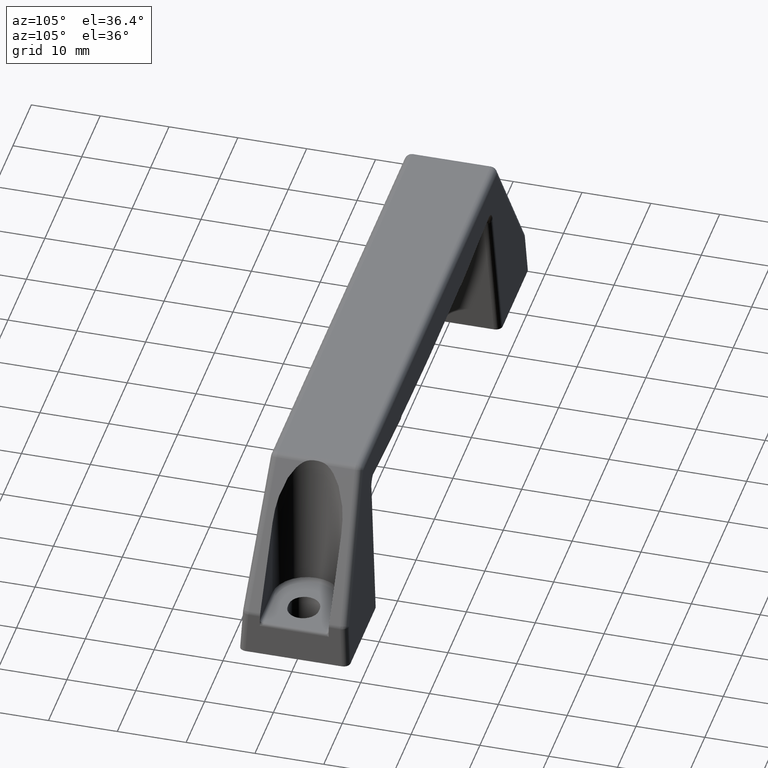
[diagram: clean part render]
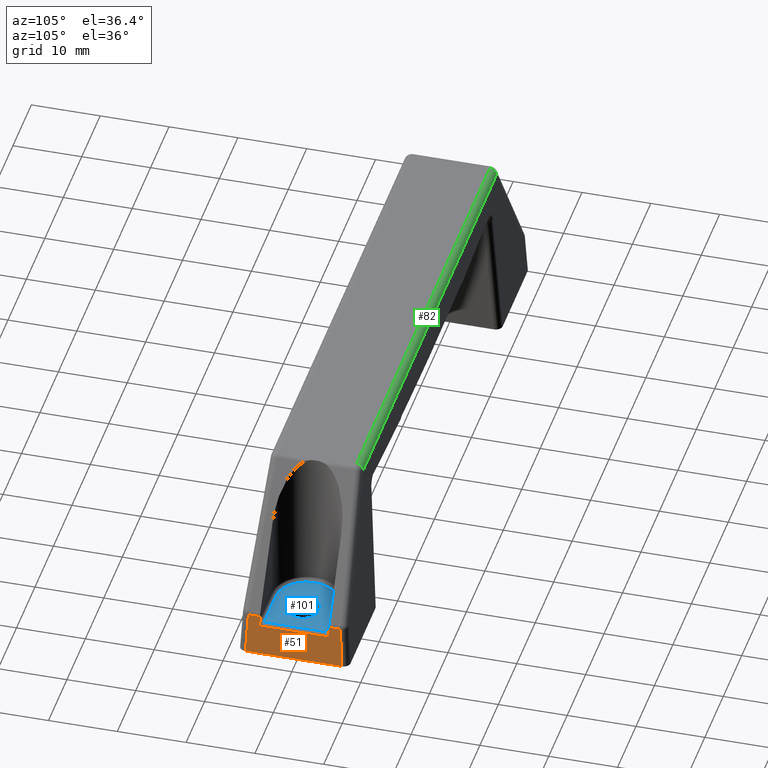
[diagram: same view with three faces highlighted in distinct colors, each labeled with its STEP entity id]
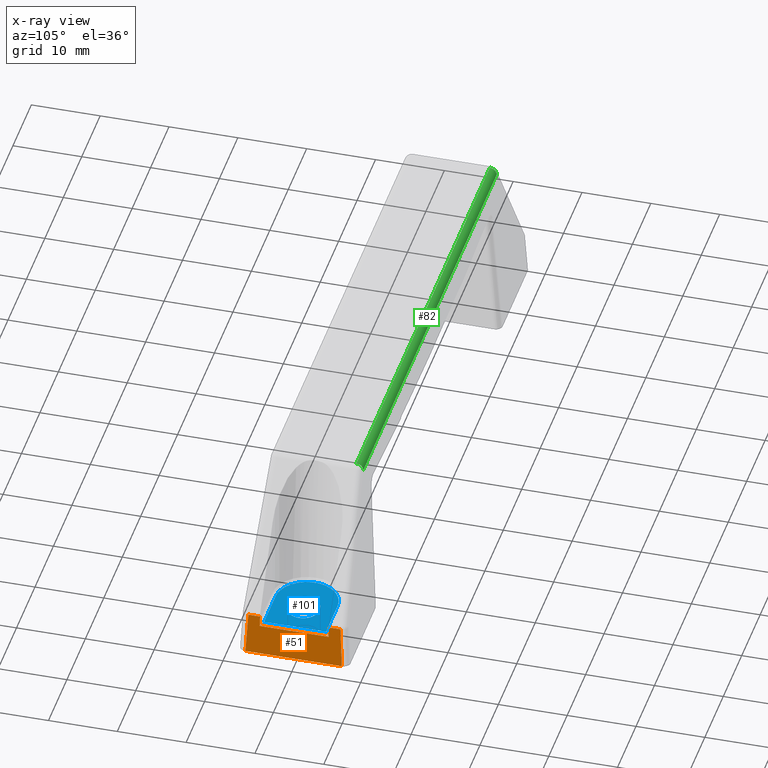
[diagram: x-ray of the same camera — body ghosted, the three highlighted faces saturated]
A machine part, auxiliary view with three faces highlighted in distinct colors.
The next image is the same camera in x-ray (body ghosted, the three faces saturated) — at least one of them is partly hidden behind the body in this view.
Their STEP definitions:

[orange] entity #51 — the highlighted planar face has unit normal (0.9977, -0, 0.068).
#51=ADVANCED_FACE('',(#231),#230,.T.);
#230=PLANE('',#1058);
#231=FACE_OUTER_BOUND('',#1059,.T.);
#1055=CARTESIAN_POINT('',(4.85427283432E+01,-8.40263158484E+00,-1.92940151010E+01));
#1056=DIRECTION('',(9.97683234125E-01,-0.00000000000E+00,6.80306132978E-02));
#1057=DIRECTION('',(6.80306132978E-02,0.00000000000E+00,-9.97683234125E-01));
#1058=AXIS2_PLACEMENT_3D('',#1055,#1056,#1057);
#1059=EDGE_LOOP('',(#1719,#1720,#1721,#1722,#1723,#1724,#1725,#1726,#1727,#1728));
#1719=ORIENTED_EDGE('',*,*,#2095,.T.);
#1720=ORIENTED_EDGE('',*,*,#2096,.T.);
#1721=ORIENTED_EDGE('',*,*,#2097,.F.);
#1722=ORIENTED_EDGE('',*,*,#2098,.F.);
#1723=ORIENTED_EDGE('',*,*,#2067,.F.);
#1724=ORIENTED_EDGE('',*,*,#2099,.F.);
#1725=ORIENTED_EDGE('',*,*,#2052,.F.);
#1726=ORIENTED_EDGE('',*,*,#2100,.T.);
#1727=ORIENTED_EDGE('',*,*,#2101,.T.);
#1728=ORIENTED_EDGE('',*,*,#2102,.T.);
#2052=EDGE_CURVE('',#2242,#2243,#2244,.T.);
#2067=EDGE_CURVE('',#2339,#2346,#2347,.T.);
#2095=EDGE_CURVE('',#2539,#2540,#2541,.T.);
#2096=EDGE_CURVE('',#2540,#2547,#2548,.T.);
#2097=EDGE_CURVE('',#2554,#2547,#2555,.T.);
#2098=EDGE_CURVE('',#2346,#2554,#2561,.T.);
#2099=EDGE_CURVE('',#2243,#2339,#2567,.T.);
#2100=EDGE_CURVE('',#2242,#2573,#2574,.T.);
#2101=EDGE_CURVE('',#2573,#2580,#2581,.T.);
#2102=EDGE_CURVE('',#2580,#2539,#2587,.T.);
#2242=VERTEX_POINT('',#3494);
#2243=VERTEX_POINT('',#3495);
#2244=LINE('',#3496,#3497);
#2339=VERTEX_POINT('',#3565);
#2346=VERTEX_POINT('',#3570);
#2347=LINE('',#3571,#3572);
#2539=VERTEX_POINT('',#3683);
#2540=VERTEX_POINT('',#3684);
#2541=LINE('',#3685,#3686);
#2547=VERTEX_POINT('',#3688);
#2548=LINE('',#3689,#3690);
#2554=VERTEX_POINT('',#3692);
#2555=LINE('',#3693,#3694);
#2561=LINE('',#3696,#3697);
#2567=LINE('',#3699,#3700);
#2573=VERTEX_POINT('',#3702);
#2574=LINE('',#3703,#3704);
#2580=VERTEX_POINT('',#3706);
#2581=LINE('',#3707,#3708);
#2587=LINE('',#3710,#3711);
#3494=CARTESIAN_POINT('',(4.86908318878E+01,5.00000000004E+00,-2.14659846934E+01));
#3495=CARTESIAN_POINT('',(4.86319156485E+01,5.00000000004E+00,-2.06019656677E+01));
#3496=CARTESIAN_POINT('',(4.86908318878E+01,5.00000000004E+00,-2.14659846934E+01));
#3497=VECTOR('',#3498,8.66025403784E-01);
#3498=DIRECTION('',(-6.80306132978E-02,0.00000000000E+00,9.97683234125E-01));
#3565=CARTESIAN_POINT('',(4.85842984938E+01,5.00000000004E+00,-1.99036500918E+01));
#3570=CARTESIAN_POINT('',(4.85842984938E+01,6.68269682695E+00,-1.99036500918E+01));
#3571=CARTESIAN_POINT('',(4.85842984938E+01,5.00000000004E+00,-1.99036500918E+01));
#3572=VECTOR('',#3573,1.68269682690E+00);
#3573=DIRECTION('',(0.00000000000E+00,1.00000000000E+00,0.00000000000E+00));
#3683=CARTESIAN_POINT('',(4.85842984938E+01,-5.00000000004E+00,-1.99036500918E+01));
#3684=CARTESIAN_POINT('',(4.85842984938E+01,-6.68269682695E+00,-1.99036500918E+01));
#3685=CARTESIAN_POINT('',(4.85842984938E+01,-5.00000000004E+00,-1.99036500918E+01));
#3686=VECTOR('',#3687,1.68269682690E+00);
#3687=DIRECTION('',(0.00000000000E+00,-1.00000000000E+00,0.00000000000E+00));
#3688=CARTESIAN_POINT('',(4.90000000000E+01,-7.00219298737E+00,-2.60000000000E+01));
#3689=CARTESIAN_POINT('',(4.85842984938E+01,-6.68269682695E+00,-1.99036500918E+01));
#3690=VECTOR('',#3691,6.11885346631E+00);
#3691=DIRECTION('',(6.79378103245E-02,-5.22150370459E-02,-9.96322259028E-01));
#3692=CARTESIAN_POINT('',(4.90000000000E+01,7.00219298737E+00,-2.60000000000E+01));
#3693=CARTESIAN_POINT('',(4.90000000000E+01,7.00219298737E+00,-2.60000000000E+01));
#3694=VECTOR('',#3695,1.40043859747E+01);
#3695=DIRECTION('',(0.00000000000E+00,-1.00000000000E+00,0.00000000000E+00));
#3696=CARTESIAN_POINT('',(4.85842984938E+01,6.68269682695E+00,-1.99036500918E+01));
#3697=VECTOR('',#3698,6.11885346631E+00);
#3698=DIRECTION('',(6.79378103245E-02,5.22150370459E-02,-9.96322259028E-01));
#3699=CARTESIAN_POINT('',(4.86319156485E+01,5.00000000004E+00,-2.06019656677E+01));
#3700=VECTOR('',#3701,6.99937166398E-01);
#3701=DIRECTION('',(-6.80306132978E-02,0.00000000000E+00,9.97683234125E-01));
#3702=CARTESIAN_POINT('',(4.86908318878E+01,-5.00000000004E+00,-2.14659846934E+01));
#3703=CARTESIAN_POINT('',(4.86908318878E+01,5.00000000004E+00,-2.14659846934E+01));
#3704=VECTOR('',#3705,1.00000000001E+01);
#3705=DIRECTION('',(0.00000000000E+00,-1.00000000000E+00,0.00000000000E+00));
#3706=CARTESIAN_POINT('',(4.86319156485E+01,-5.00000000004E+00,-2.06019656677E+01));
#3707=CARTESIAN_POINT('',(4.86908318878E+01,-5.00000000004E+00,-2.14659846934E+01));
#3708=VECTOR('',#3709,8.66025403784E-01);
#3709=DIRECTION('',(-6.80306132978E-02,0.00000000000E+00,9.97683234125E-01));
#3710=CARTESIAN_POINT('',(4.86319156485E+01,-5.00000000004E+00,-2.06019656677E+01));
#3711=VECTOR('',#3712,6.99937166398E-01);
#3712=DIRECTION('',(-6.80306132978E-02,0.00000000000E+00,9.97683234125E-01));

[blue] entity #101 — the highlighted planar face has unit normal (0, 0, -1).
#101=ADVANCED_FACE('',(#734,#735),#733,.F.);
#733=PLANE('',#1522);
#734=FACE_OUTER_BOUND('',#1523,.T.);
#735=FACE_BOUND('',#1524,.T.);
#1519=CARTESIAN_POINT('',(4.92715418199E+01,-5.40000000005E+00,-2.10000000000E+01));
#1520=DIRECTION('',(1.31864321607E-12,0.00000000000E+00,-1.00000000000E+00));
#1521=DIRECTION('',(-1.00000000000E+00,0.00000000000E+00,-1.31864321607E-12));
#1522=AXIS2_PLACEMENT_3D('',#1519,#1520,#1521);
#1523=EDGE_LOOP('',(#1960,#1961,#1962,#1963));
#1524=EDGE_LOOP('',(#1964,#1965,#1966,#1967));
#1960=ORIENTED_EDGE('',*,*,#2220,.T.);
#1961=ORIENTED_EDGE('',*,*,#2059,.F.);
#1962=ORIENTED_EDGE('',*,*,#2103,.T.);
#1963=ORIENTED_EDGE('',*,*,#2226,.T.);
#1964=ORIENTED_EDGE('',*,*,#2208,.T.);
#1965=ORIENTED_EDGE('',*,*,#2210,.T.);
#1966=ORIENTED_EDGE('',*,*,#2227,.F.);
#1967=ORIENTED_EDGE('',*,*,#2205,.T.);
#2059=EDGE_CURVE('',#2283,#2263,#2291,.T.);
#2103=EDGE_CURVE('',#2283,#2593,#2594,.T.);
#2205=EDGE_CURVE('',#3263,#3256,#3264,.T.);
#2208=EDGE_CURVE('',#3256,#3276,#3283,.T.);
#2210=EDGE_CURVE('',#3276,#3289,#3296,.T.);
#2220=EDGE_CURVE('',#3358,#2263,#3359,.T.);
#2226=EDGE_CURVE('',#2593,#3358,#3396,.T.);
#2227=EDGE_CURVE('',#3263,#3289,#3402,.T.);
#2263=VERTEX_POINT('',#3514);
#2283=VERTEX_POINT('',#3528);
#2291=LINE('',#3534,#3535);
#2593=VERTEX_POINT('',#3713);
#2594=(BOUNDED_CURVE() B_SPLINE_CURVE(2,(#3714,#3715,#3716,#3717,#3718),.UNSPECIFIED.,.F.,.F.) B_SPLINE_CURVE_WITH_KNOTS((3,2,3),(-4.71238898038E+00,-3.14159265359E+00,-1.57079632679E+00),.UNSPECIFIED.) CURVE() GEOMETRIC_REPRESENTATION_ITEM() RATIONAL_B_SPLINE_CURVE((1.00000000000E+00,7.07106781187E-01,1.00000000000E+00,7.07106781187E-01,1.00000000000E+00)) REPRESENTATION_ITEM('') );
#3256=VERTEX_POINT('',#4149);
#3263=VERTEX_POINT('',#4153);
#3264=CIRCLE('',#4157,2.25000000000E+00);
#3276=VERTEX_POINT('',#4161);
#3283=LINE('',#4165,#4166);
#3289=VERTEX_POINT('',#4168);
#3296=CIRCLE('',#4175,2.25000000000E+00);
#3358=VERTEX_POINT('',#4215);
#3359=LINE('',#4216,#4217);
#3396=LINE('',#4250,#4251);
#3402=LINE('',#4253,#4254);
#3514=CARTESIAN_POINT('',(4.81919902708E+01,4.50000000004E+00,-2.10000000000E+01));
#3528=CARTESIAN_POINT('',(4.18965874183E+01,4.50000000004E+00,-2.10000000000E+01));
#3534=CARTESIAN_POINT('',(4.18965874183E+01,4.50000000004E+00,-2.10000000000E+01));
#3535=VECTOR('',#3536,6.29540285243E+00);
#3536=DIRECTION('',(1.00000000000E+00,0.00000000000E+00,1.31828563608E-12));
#3713=CARTESIAN_POINT('',(4.18965874183E+01,-4.50000000004E+00,-2.10000000000E+01));
#3714=CARTESIAN_POINT('',(4.18965874183E+01,4.49999999996E+00,-2.10000000000E+01));
#3715=CARTESIAN_POINT('',(3.73964747796E+01,4.49999999996E+00,-2.10000000000E+01));
#3716=CARTESIAN_POINT('',(3.73964747796E+01,-4.30772044283E-11,-2.10000000000E+01));
#3717=CARTESIAN_POINT('',(3.73964747796E+01,-4.50000000004E+00,-2.10000000000E+01));
#3718=CARTESIAN_POINT('',(4.18965874183E+01,-4.50000000004E+00,-2.10000000000E+01));
#4149=CARTESIAN_POINT('',(4.38000000000E+01,-2.25000000000E+00,-2.10000000000E+01));
#4153=CARTESIAN_POINT('',(4.38000000000E+01,2.25000000000E+00,-2.10000000000E+01));
#4154=CARTESIAN_POINT('',(4.38000000000E+01,0.00000000000E+00,-2.10000000000E+01));
#4155=DIRECTION('',(1.31864321607E-12,4.48415508584E-44,-1.00000000000E+00));
#4156=DIRECTION('',(-1.83690953073E-16,1.00000000000E+00,-2.42222829124E-28));
#4157=AXIS2_PLACEMENT_3D('',#4154,#4155,#4156);
#4161=CARTESIAN_POINT('',(4.32000000000E+01,-2.25000000000E+00,-2.10000000000E+01));
#4165=CARTESIAN_POINT('',(4.38000000000E+01,-2.25000000000E+00,-2.10000000000E+01));
#4166=VECTOR('',#4167,6.00000000000E-01);
#4167=DIRECTION('',(-1.00000000000E+00,0.00000000000E+00,-1.32042525062E-12));
#4168=CARTESIAN_POINT('',(4.32000000000E+01,2.25000000000E+00,-2.10000000000E+01));
#4172=CARTESIAN_POINT('',(4.32000000000E+01,0.00000000000E+00,-2.10000000000E+01));
#4173=DIRECTION('',(1.31864321607E-12,0.00000000000E+00,-1.00000000000E+00));
#4174=DIRECTION('',(1.00000000000E+00,-0.00000000000E+00,1.31864321607E-12));
#4175=AXIS2_PLACEMENT_3D('',#4172,#4173,#4174);
#4215=CARTESIAN_POINT('',(4.81919902708E+01,-4.50000000004E+00,-2.10000000000E+01));
#4216=CARTESIAN_POINT('',(4.81919902708E+01,-4.50000000004E+00,-2.10000000000E+01));
#4217=VECTOR('',#4218,9.00000000009E+00);
#4218=DIRECTION('',(0.00000000000E+00,1.00000000000E+00,0.00000000000E+00));
#4250=CARTESIAN_POINT('',(4.18965874183E+01,-4.50000000004E+00,-2.10000000000E+01));
#4251=VECTOR('',#4252,6.29540285243E+00);
#4252=DIRECTION('',(1.00000000000E+00,0.00000000000E+00,1.31828563608E-12));
#4253=CARTESIAN_POINT('',(4.38000000000E+01,2.25000000000E+00,-2.10000000000E+01));
#4254=VECTOR('',#4255,6.00000000000E-01);
#4255=DIRECTION('',(-1.00000000000E+00,0.00000000000E+00,-1.32042525062E-12));

[green] entity #82 — the highlighted cylindrical surface (edge-blend (fillet) strip) has radius 1 mm, axis along (-1, 0, -0).
#82=ADVANCED_FACE('',(#544),#543,.T.);
#543=CYLINDRICAL_SURFACE('',#1350,1.00000000000E+00);
#544=FACE_OUTER_BOUND('',#1351,.T.);
#1347=CARTESIAN_POINT('',(3.67518200672E+01,5.68843317192E+00,-9.99999999967E-01));
#1348=DIRECTION('',(-1.00000000000E+00,4.64868928050E-14,-8.87022755801E-13));
#1349=DIRECTION('',(-8.87022755801E-13,-5.11590769747E-13,1.00000000000E+00));
#1350=AXIS2_PLACEMENT_3D('',#1347,#1348,#1349);
#1351=EDGE_LOOP('',(#1876,#1877,#1878,#1879));
#1876=ORIENTED_EDGE('',*,*,#2192,.T.);
#1877=ORIENTED_EDGE('',*,*,#2195,.T.);
#1878=ORIENTED_EDGE('',*,*,#2196,.F.);
#1879=ORIENTED_EDGE('',*,*,#2197,.T.);
#2192=EDGE_CURVE('',#2632,#3174,#3181,.T.);
#2195=EDGE_CURVE('',#3174,#3200,#3201,.T.);
#2196=EDGE_CURVE('',#2963,#3200,#3207,.T.);
#2197=EDGE_CURVE('',#2963,#2632,#3213,.T.);
#2632=VERTEX_POINT('',#3750);
#2963=VERTEX_POINT('',#3954);
#3174=VERTEX_POINT('',#4098);
#3181=CIRCLE('',#4106,1.00000000000E+00);
#3200=VERTEX_POINT('',#4115);
#3201=LINE('',#4116,#4117);
#3207=CIRCLE('',#4122,1.00000000000E+00);
#3213=LINE('',#4123,#4124);
#3750=CARTESIAN_POINT('',(3.61860779996E+01,5.68843317192E+00,3.20978746288E-11));
#3954=CARTESIAN_POINT('',(-3.61860779996E+01,5.68843317193E+00,-3.20978746288E-11));
#4098=CARTESIAN_POINT('',(3.61860779996E+01,6.68706270668E+00,-9.47664043725E-01));
#4103=CARTESIAN_POINT('',(3.61860779996E+01,5.68843317192E+00,-9.99999999968E-01));
#4104=DIRECTION('',(-1.00000000000E+00,4.65474585836E-14,-8.88178419700E-13));
#4105=DIRECTION('',(-8.88178419700E-13,-2.57571741713E-14,1.00000000000E+00));
#4106=AXIS2_PLACEMENT_3D('',#4103,#4104,#4105);
#4115=CARTESIAN_POINT('',(-3.61860779996E+01,6.68706270668E+00,-9.47664043789E-01));
#4116=CARTESIAN_POINT('',(3.61860779996E+01,6.68706270668E+00,-9.47664043725E-01));
#4117=VECTOR('',#4118,7.23721559992E+01);
#4118=DIRECTION('',(-1.00000000000E+00,4.64877660113E-14,-8.87022901733E-13));
#4119=CARTESIAN_POINT('',(-3.61860779996E+01,5.68843317193E+00,-1.00000000003E+00));
#4120=DIRECTION('',(-1.00000000000E+00,4.65474585836E-14,-8.88178419700E-13));
#4121=DIRECTION('',(-8.88178419700E-13,-0.00000000000E+00,1.00000000000E+00));
#4122=AXIS2_PLACEMENT_3D('',#4119,#4120,#4121);
#4123=CARTESIAN_POINT('',(-3.61860779996E+01,5.68843317193E+00,-3.20978746288E-11));
#4124=VECTOR('',#4125,7.23721559992E+01);
#4125=DIRECTION('',(1.00000000000E+00,-4.64877660113E-14,8.87022755801E-13));